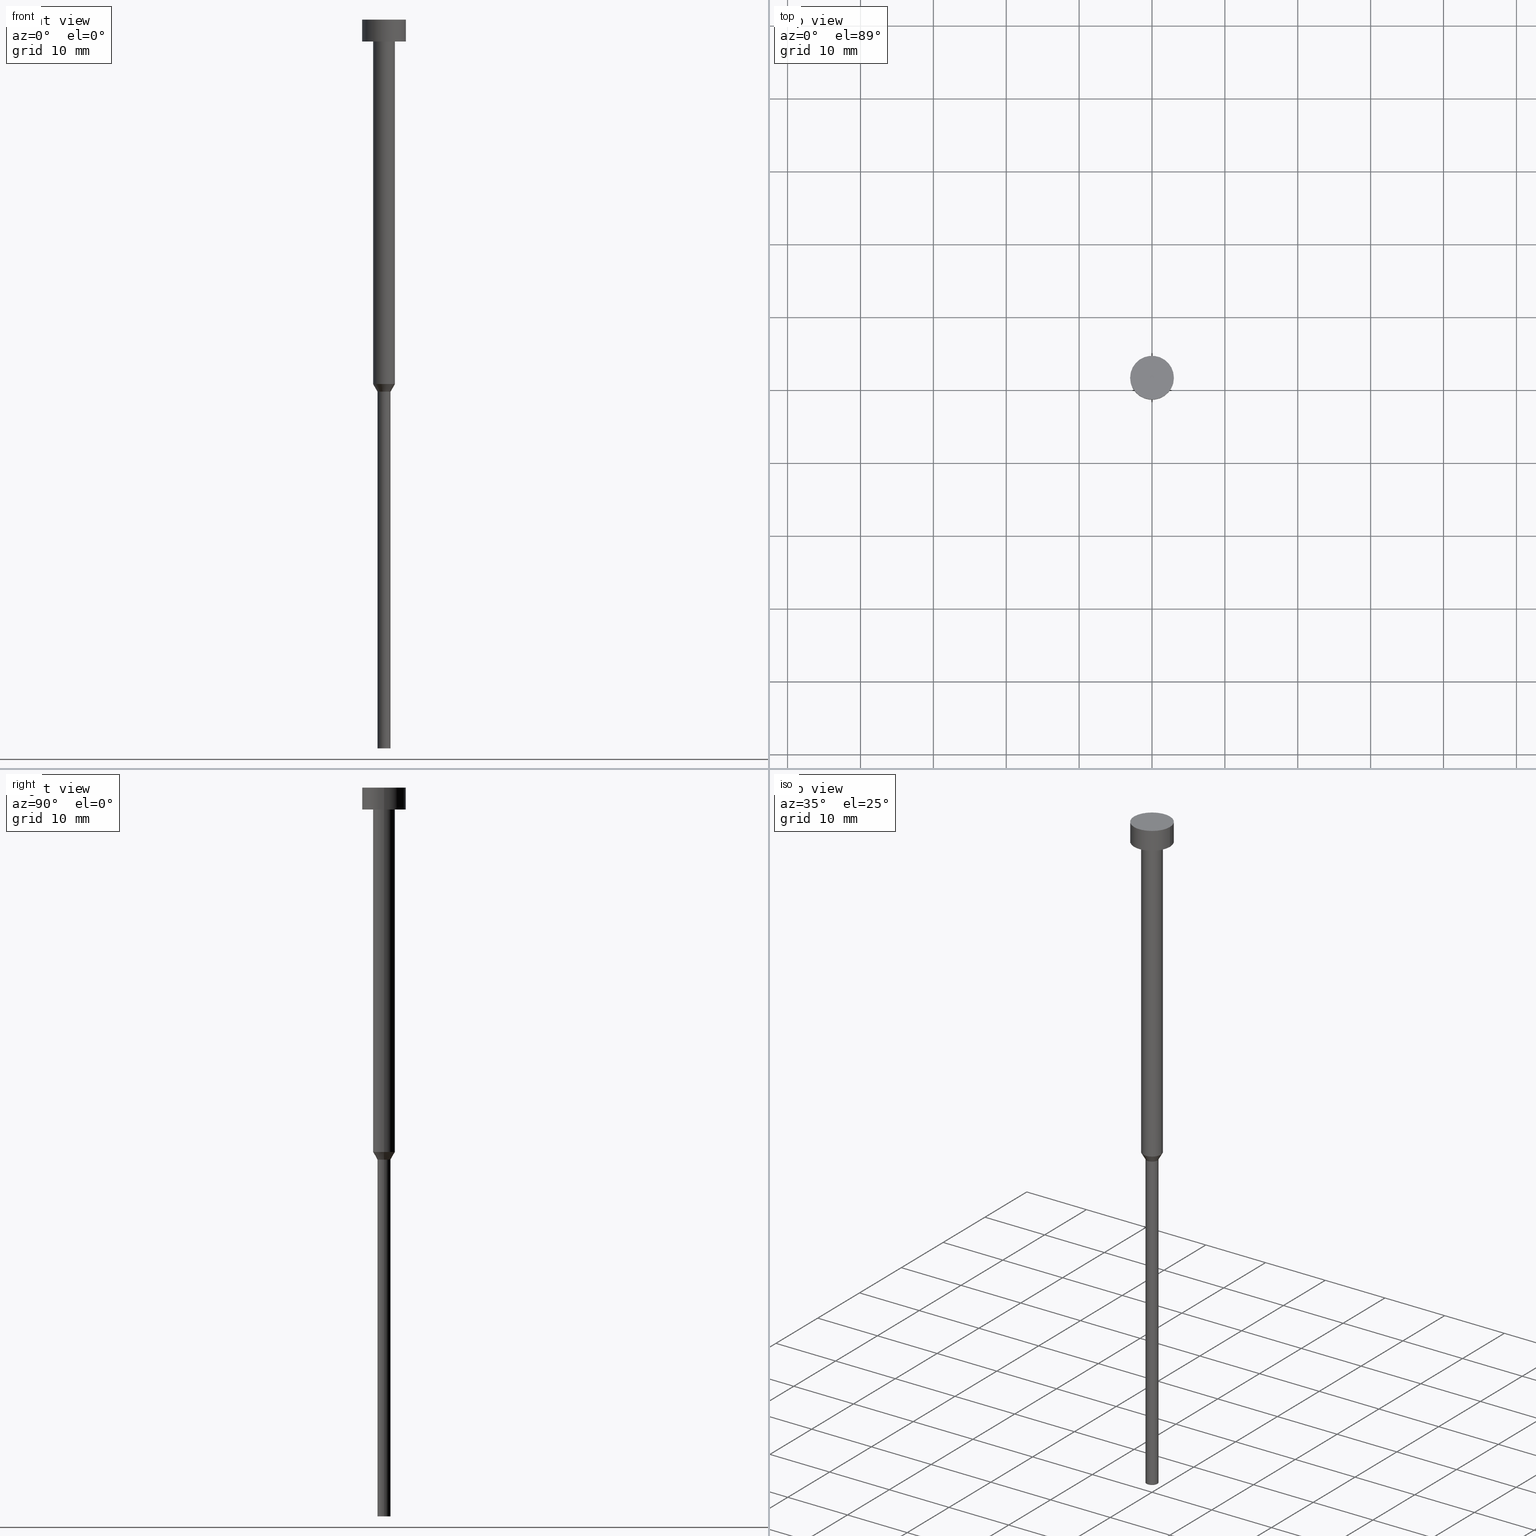
[diagram: canonical four-view strip — front | top / right | iso, engineering-drawing reading convention]
A machine part, canonical four-view strip (front | top / right | iso — engineering-drawing reading convention). The complete STEP part file that produces these views, byte-faithful:
ISO-10303-21;
HEADER;
FILE_DESCRIPTION (( 'STEP AP203' ),
    '1' );
FILE_NAME ('d9d7.STEP',
    '2023-02-13T10:56:32',
    ( '' ),
    ( '' ),
    'SwSTEP 2.0',
    'SolidWorks 2019',
    '' );
FILE_SCHEMA (( 'CONFIG_CONTROL_DESIGN' ));
ENDSEC;

DATA;
#1 = CARTESIAN_POINT ( 'NONE',  ( -0.9000000000000000222, 1.102182119232617788E-16, -51.03923048454132783 ) ) ;
#2 = CARTESIAN_POINT ( 'NONE',  ( 0.000000000000000000, 0.000000000000000000, -3.000000000000000888 ) ) ;
#3 = CARTESIAN_POINT ( 'NONE',  ( 1.500000000000000000, 0.000000000000000000, -50.00000000000000000 ) ) ;
#4 = AXIS2_PLACEMENT_3D ( 'NONE', #252, #111, #197 ) ;
#5 = CARTESIAN_POINT ( 'NONE',  ( 0.000000000000000000, 0.000000000000000000, 0.000000000000000000 ) ) ;
#6 = EDGE_CURVE ( 'NONE', #209, #97, #129, .T. ) ;
#7 = EDGE_CURVE ( 'NONE', #144, #146, #316, .T. ) ;
#8 = PRODUCT_DEFINITION ( 'NEZN�M�', '', #194, #217 ) ;
#9 = DIRECTION ( 'NONE',  ( -0.000000000000000000, -0.000000000000000000, 1.000000000000000000 ) ) ;
#10 = DIRECTION ( 'NONE',  ( -0.000000000000000000, -0.000000000000000000, 1.000000000000000000 ) ) ;
#11 = DIRECTION ( 'NONE',  ( -0.000000000000000000, -0.000000000000000000, 1.000000000000000000 ) ) ;
#12 = ORIENTED_EDGE ( 'NONE', *, *, #240, .F. ) ;
#13 = CARTESIAN_POINT ( 'NONE',  ( -0.9000000000000000222, 1.102182119232617788E-16, 0.000000000000000000 ) ) ;
#14 = AXIS2_PLACEMENT_3D ( 'NONE', #43, #322, #76 ) ;
#15 = DATE_AND_TIME ( #286, #250 ) ;
#16 = EDGE_LOOP ( 'NONE', ( #280, #231 ) ) ;
#17 = VECTOR ( 'NONE', #56, 1000.000000000000000 ) ;
#18 = EDGE_CURVE ( 'NONE', #185, #97, #284, .T. ) ;
#19 = DATE_AND_TIME ( #180, #75 ) ;
#20 = ORIENTED_EDGE ( 'NONE', *, *, #192, .F. ) ;
#21 = EDGE_LOOP ( 'NONE', ( #26, #159, #203, #288 ) ) ;
#22 = CALENDAR_DATE ( 2023, 13, 2 ) ;
#23 = ADVANCED_FACE ( 'NONE', ( #344 ), #210, .T. ) ;
#24 = VERTEX_POINT ( 'NONE', #187 ) ;
#25 = AXIS2_PLACEMENT_3D ( 'NONE', #2, #215, #328 ) ;
#26 = ORIENTED_EDGE ( 'NONE', *, *, #240, .T. ) ;
#27 = CARTESIAN_POINT ( 'NONE',  ( 0.000000000000000000, 0.000000000000000000, -3.000000000000000888 ) ) ;
#28 = CARTESIAN_POINT ( 'NONE',  ( -1.500000000000000000, 1.836970198721029934E-16, -50.00000000000000000 ) ) ;
#29 =( GEOMETRIC_REPRESENTATION_CONTEXT ( 3 ) GLOBAL_UNCERTAINTY_ASSIGNED_CONTEXT ( ( #153 ) ) GLOBAL_UNIT_ASSIGNED_CONTEXT ( ( #63, #279, #141 ) ) REPRESENTATION_CONTEXT ( 'NONE', 'WORKASPACE' ) );
#30 = DIRECTION ( 'NONE',  ( 1.000000000000000000, 0.000000000000000000, 0.000000000000000000 ) ) ;
#31 = MANIFOLD_SOLID_BREP ( 'Rotovat1', #59 ) ;
#32 = ADVANCED_FACE ( 'NONE', ( #93 ), #292, .T. ) ;
#33 = DIRECTION ( 'NONE',  ( -0.000000000000000000, -0.000000000000000000, 1.000000000000000000 ) ) ;
#34 = CARTESIAN_POINT ( 'NONE',  ( -3.000000000000000000, 3.673940397442059868E-16, 0.000000000000000000 ) ) ;
#35 = CARTESIAN_POINT ( 'NONE',  ( 3.000000000000000000, 0.000000000000000000, 0.000000000000000000 ) ) ;
#36 = CARTESIAN_POINT ( 'NONE',  ( 0.000000000000000000, 0.000000000000000000, -50.00000000000000000 ) ) ;
#37 = CC_DESIGN_APPROVAL ( #94, ( #194 ) ) ;
#38 = ORIENTED_EDGE ( 'NONE', *, *, #46, .F. ) ;
#39 = VERTEX_POINT ( 'NONE', #53 ) ;
#40 = PERSON_AND_ORGANIZATION ( #345, #108 ) ;
#41 = AXIS2_PLACEMENT_3D ( 'NONE', #193, #242, #30 ) ;
#42 = PERSON_AND_ORGANIZATION_ROLE ( 'creator' ) ;
#43 = CARTESIAN_POINT ( 'NONE',  ( 0.000000000000000000, 0.000000000000000000, 0.000000000000000000 ) ) ;
#44 = APPROVAL_DATE_TIME ( #15, #183 ) ;
#45 = ORIENTED_EDGE ( 'NONE', *, *, #254, .T. ) ;
#46 = EDGE_CURVE ( 'NONE', #314, #39, #50, .T. ) ;
#47 = DIRECTION ( 'NONE',  ( 0.000000000000000000, 0.000000000000000000, 1.000000000000000000 ) ) ;
#48 = ORIENTED_EDGE ( 'NONE', *, *, #6, .F. ) ;
#49 = ORIENTED_EDGE ( 'NONE', *, *, #340, .T. ) ;
#50 = CIRCLE ( 'NONE', #335, 3.000000000000000000 ) ;
#51 = CARTESIAN_POINT ( 'NONE',  ( 3.000000000000000000, 0.000000000000000000, -3.673940397442059868E-16 ) ) ;
#52 = PLANE ( 'NONE',  #258 ) ;
#53 = CARTESIAN_POINT ( 'NONE',  ( 3.000000000000000000, 0.000000000000000000, -3.000000000000000888 ) ) ;
#54 = DIRECTION ( 'NONE',  ( 1.000000000000000000, 0.000000000000000000, 0.000000000000000000 ) ) ;
#55 = DIRECTION ( 'NONE',  ( -0.000000000000000000, -0.000000000000000000, 1.000000000000000000 ) ) ;
#56 = DIRECTION ( 'NONE',  ( -0.000000000000000000, -0.000000000000000000, 1.000000000000000000 ) ) ;
#57 = AXIS2_PLACEMENT_3D ( 'NONE', #198, #195, #87 ) ;
#58 = LOCAL_TIME ( 11, 56, 32.00000000000000000, #319 ) ;
#59 = CLOSED_SHELL ( 'NONE', ( #277, #305, #122, #32, #130, #253, #291, #23, #226, #243, #79 ) ) ;
#60 = CYLINDRICAL_SURFACE ( 'NONE', #165, 1.500000000000000000 ) ;
#61 = EDGE_CURVE ( 'NONE', #182, #96, #241, .T. ) ;
#62 = CYLINDRICAL_SURFACE ( 'NONE', #309, 3.000000000000000000 ) ;
#63 =( LENGTH_UNIT ( ) NAMED_UNIT ( * ) SI_UNIT ( .MILLI., .METRE. ) );
#64 = EDGE_LOOP ( 'NONE', ( #12, #38 ) ) ;
#65 = CARTESIAN_POINT ( 'NONE',  ( 0.000000000000000000, 0.000000000000000000, -3.000000000000000888 ) ) ;
#66 = VERTEX_POINT ( 'NONE', #246 ) ;
#67 = PERSON_AND_ORGANIZATION_ROLE ( 'classification_officer' ) ;
#68 = ORIENTED_EDGE ( 'NONE', *, *, #300, .T. ) ;
#69 = SECURITY_CLASSIFICATION_LEVEL ( 'unclassified' ) ;
#70 = ORIENTED_EDGE ( 'NONE', *, *, #46, .T. ) ;
#71 = ORIENTED_EDGE ( 'NONE', *, *, #346, .F. ) ;
#72 = CC_DESIGN_PERSON_AND_ORGANIZATION_ASSIGNMENT ( #156, #176, ( #306 ) ) ;
#73 = PERSON_AND_ORGANIZATION ( #345, #108 ) ;
#74 = DIRECTION ( 'NONE',  ( -0.000000000000000000, -0.000000000000000000, 1.000000000000000000 ) ) ;
#75 = LOCAL_TIME ( 11, 56, 32.00000000000000000, #208 ) ;
#76 = DIRECTION ( 'NONE',  ( 1.000000000000000000, 0.000000000000000000, 0.000000000000000000 ) ) ;
#77 = AXIS2_PLACEMENT_3D ( 'NONE', #162, #81, #272 ) ;
#78 = PRODUCT_RELATED_PRODUCT_CATEGORY ( 'detail', '', ( #306 ) ) ;
#79 = ADVANCED_FACE ( 'NONE', ( #244 ), #52, .T. ) ;
#80 = CARTESIAN_POINT ( 'NONE',  ( 1.500000000000000000, 0.000000000000000000, -3.000000000000000888 ) ) ;
#81 = DIRECTION ( 'NONE',  ( 0.000000000000000000, 0.000000000000000000, -1.000000000000000000 ) ) ;
#82 = CARTESIAN_POINT ( 'NONE',  ( 0.000000000000000000, 0.000000000000000000, -51.03923048454132783 ) ) ;
#83 = FACE_OUTER_BOUND ( 'NONE', #64, .T. ) ;
#84 = DIRECTION ( 'NONE',  ( -0.000000000000000000, -0.000000000000000000, 1.000000000000000000 ) ) ;
#85 = DIRECTION ( 'NONE',  ( 1.000000000000000000, 0.000000000000000000, 0.000000000000000000 ) ) ;
#86 = AXIS2_PLACEMENT_3D ( 'NONE', #236, #74, #352 ) ;
#87 = DIRECTION ( 'NONE',  ( 1.000000000000000000, 0.000000000000000000, 0.000000000000000000 ) ) ;
#88 = DIRECTION ( 'NONE',  ( -0.000000000000000000, -0.000000000000000000, 1.000000000000000000 ) ) ;
#89 = DIRECTION ( 'NONE',  ( 1.000000000000000000, 0.000000000000000000, 0.000000000000000000 ) ) ;
#90 = CC_DESIGN_DATE_AND_TIME_ASSIGNMENT ( #145, #283, ( #8 ) ) ;
#91 = CARTESIAN_POINT ( 'NONE',  ( -3.000000000000000000, 3.673940397442059868E-16, -3.000000000000000888 ) ) ;
#92 = COORDINATED_UNIVERSAL_TIME_OFFSET ( 1, 0, .AHEAD. ) ;
#93 = FACE_OUTER_BOUND ( 'NONE', #281, .T. ) ;
#94 = APPROVAL ( #149, 'NEUR�EN�' ) ;
#95 = CALENDAR_DATE ( 2023, 13, 2 ) ;
#96 = VERTEX_POINT ( 'NONE', #80 ) ;
#97 = VERTEX_POINT ( 'NONE', #28 ) ;
#98 = APPROVAL_DATE_TIME ( #261, #94 ) ;
#99 = DIRECTION ( 'NONE',  ( -0.000000000000000000, -0.000000000000000000, 1.000000000000000000 ) ) ;
#100 = ORIENTED_EDGE ( 'NONE', *, *, #254, .F. ) ;
#101 = EDGE_CURVE ( 'NONE', #66, #256, #137, .T. ) ;
#102 = AXIS2_PLACEMENT_3D ( 'NONE', #127, #99, #320 ) ;
#103 = CARTESIAN_POINT ( 'NONE',  ( 0.000000000000000000, -3.000000000000000000, -3.000000000000000888 ) ) ;
#104 = CIRCLE ( 'NONE', #57, 3.000000000000000000 ) ;
#105 = DIRECTION ( 'NONE',  ( -0.000000000000000000, -0.000000000000000000, 1.000000000000000000 ) ) ;
#106 = CARTESIAN_POINT ( 'NONE',  ( 0.000000000000000000, 0.000000000000000000, -3.000000000000000888 ) ) ;
#107 = PLANE ( 'NONE',  #290 ) ;
#108 = ORGANIZATION ( 'NEUR�EN�', 'NEUR�EN�', '' ) ;
#109 = CARTESIAN_POINT ( 'NONE',  ( -3.000000000000000000, 3.673940397442059868E-16, -3.673940397442059868E-16 ) ) ;
#110 = DIRECTION ( 'NONE',  ( -0.000000000000000000, -0.000000000000000000, 1.000000000000000000 ) ) ;
#111 = DIRECTION ( 'NONE',  ( -0.000000000000000000, -0.000000000000000000, 1.000000000000000000 ) ) ;
#112 = LOCAL_TIME ( 11, 56, 32.00000000000000000, #123 ) ;
#113 = DIRECTION ( 'NONE',  ( 1.000000000000000000, 0.000000000000000000, 0.000000000000000000 ) ) ;
#114 = DIRECTION ( 'NONE',  ( 1.000000000000000000, 0.000000000000000000, 0.000000000000000000 ) ) ;
#115 = EDGE_LOOP ( 'NONE', ( #48, #318, #312, #349 ) ) ;
#116 = LINE ( 'NONE', #13, #212 ) ;
#117 = ORIENTED_EDGE ( 'NONE', *, *, #18, .T. ) ;
#118 = CC_DESIGN_APPROVAL ( #167, ( #8 ) ) ;
#119 = SECURITY_CLASSIFICATION ( '', '', #69 ) ;
#120 = CIRCLE ( 'NONE', #186, 0.9000000000000000222 ) ;
#121 = ORIENTED_EDGE ( 'NONE', *, *, #263, .F. ) ;
#122 = ADVANCED_FACE ( 'NONE', ( #190 ), #354, .T. ) ;
#123 = COORDINATED_UNIVERSAL_TIME_OFFSET ( 1, 0, .AHEAD. ) ;
#124 = ORIENTED_EDGE ( 'NONE', *, *, #18, .F. ) ;
#125 = ORIENTED_EDGE ( 'NONE', *, *, #192, .T. ) ;
#126 = DATE_TIME_ROLE ( 'classification_date' ) ;
#127 = CARTESIAN_POINT ( 'NONE',  ( 0.000000000000000000, 0.000000000000000000, -3.673940397442059868E-16 ) ) ;
#128 = APPROVAL_ROLE ( '' ) ;
#129 = LINE ( 'NONE', #155, #299 ) ;
#130 = ADVANCED_FACE ( 'NONE', ( #164 ), #327, .T. ) ;
#131 = CARTESIAN_POINT ( 'NONE',  ( 0.9000000000000000222, 0.000000000000000000, 0.000000000000000000 ) ) ;
#132 = AXIS2_PLACEMENT_3D ( 'NONE', #5, #55, #294 ) ;
#133 = DIRECTION ( 'NONE',  ( 1.000000000000000000, 0.000000000000000000, 0.000000000000000000 ) ) ;
#134 = AXIS2_PLACEMENT_3D ( 'NONE', #163, #330, #133 ) ;
#135 = CARTESIAN_POINT ( 'NONE',  ( 0.000000000000000000, 0.000000000000000000, -51.03923048454132783 ) ) ;
#136 = DIRECTION ( 'NONE',  ( 1.000000000000000000, 0.000000000000000000, 0.000000000000000000 ) ) ;
#137 = LINE ( 'NONE', #131, #325 ) ;
#138 = EDGE_CURVE ( 'NONE', #209, #256, #343, .T. ) ;
#139 = LINE ( 'NONE', #35, #17 ) ;
#140 = CC_DESIGN_PERSON_AND_ORGANIZATION_ASSIGNMENT ( #259, #232, ( #194 ) ) ;
#141 =( NAMED_UNIT ( * ) SI_UNIT ( $, .STERADIAN. ) SOLID_ANGLE_UNIT ( ) );
#142 = ORIENTED_EDGE ( 'NONE', *, *, #138, .F. ) ;
#143 = APPLICATION_PROTOCOL_DEFINITION ( 'international standard', 'config_control_design', 1994, #331 ) ;
#144 = VERTEX_POINT ( 'NONE', #51 ) ;
#145 = DATE_AND_TIME ( #317, #147 ) ;
#146 = VERTEX_POINT ( 'NONE', #109 ) ;
#147 = LOCAL_TIME ( 11, 56, 32.00000000000000000, #92 ) ;
#148 = AXIS2_PLACEMENT_3D ( 'NONE', #65, #88, #85 ) ;
#149 = APPROVAL_STATUS ( 'not_yet_approved' ) ;
#150 = ORIENTED_EDGE ( 'NONE', *, *, #219, .T. ) ;
#151 = SHAPE_DEFINITION_REPRESENTATION ( #171, #315 ) ;
#152 = ORIENTED_EDGE ( 'NONE', *, *, #184, .F. ) ;
#153 = UNCERTAINTY_MEASURE_WITH_UNIT (LENGTH_MEASURE( 1.000000000000000082E-05 ), #63, 'distance_accuracy_value', 'NONE');
#154 = APPLICATION_PROTOCOL_DEFINITION ( 'international standard', 'config_control_design', 1994, #304 ) ;
#155 = CARTESIAN_POINT ( 'NONE',  ( -1.500000000000000000, 1.836970198721029934E-16, -50.00000000000000000 ) ) ;
#156 = PERSON_AND_ORGANIZATION ( #345, #108 ) ;
#157 = EDGE_CURVE ( 'NONE', #256, #185, #271, .T. ) ;
#158 = VECTOR ( 'NONE', #84, 1000.000000000000000 ) ;
#159 = ORIENTED_EDGE ( 'NONE', *, *, #346, .T. ) ;
#160 = DIRECTION ( 'NONE',  ( 1.000000000000000000, 0.000000000000000000, 0.000000000000000000 ) ) ;
#161 = CARTESIAN_POINT ( 'NONE',  ( 0.000000000000000000, 0.000000000000000000, -50.00000000000000000 ) ) ;
#162 = CARTESIAN_POINT ( 'NONE',  ( 0.000000000000000000, 0.000000000000000000, -100.0000000000000000 ) ) ;
#163 = CARTESIAN_POINT ( 'NONE',  ( 0.000000000000000000, 0.000000000000000000, -50.00000000000000000 ) ) ;
#164 = FACE_OUTER_BOUND ( 'NONE', #172, .T. ) ;
#165 = AXIS2_PLACEMENT_3D ( 'NONE', #218, #10, #89 ) ;
#166 = CARTESIAN_POINT ( 'NONE',  ( 1.500000000000000000, 0.000000000000000000, 0.000000000000000000 ) ) ;
#167 = APPROVAL ( #206, 'NEUR�EN�' ) ;
#168 = AXIS2_PLACEMENT_3D ( 'NONE', #36, #248, #114 ) ;
#169 = ORIENTED_EDGE ( 'NONE', *, *, #157, .F. ) ;
#170 = FACE_OUTER_BOUND ( 'NONE', #115, .T. ) ;
#171 = PRODUCT_DEFINITION_SHAPE ( 'NONE', 'NONE',  #8 ) ;
#172 = EDGE_LOOP ( 'NONE', ( #20, #121 ) ) ;
#173 = AXIS2_PLACEMENT_3D ( 'NONE', #161, #293, #189 ) ;
#174 = ORIENTED_EDGE ( 'NONE', *, *, #6, .T. ) ;
#175 = APPROVAL_DATE_TIME ( #19, #167 ) ;
#176 = PERSON_AND_ORGANIZATION_ROLE ( 'design_owner' ) ;
#177 = ORIENTED_EDGE ( 'NONE', *, *, #263, .T. ) ;
#178 = CIRCLE ( 'NONE', #25, 3.000000000000000000 ) ;
#179 = APPROVAL_PERSON_ORGANIZATION ( #230, #167, #264 ) ;
#180 = CALENDAR_DATE ( 2023, 13, 2 ) ;
#181 = EDGE_LOOP ( 'NONE', ( #152, #287, #207, #289 ) ) ;
#182 = VERTEX_POINT ( 'NONE', #332 ) ;
#183 = APPROVAL ( #255, 'NEUR�EN�' ) ;
#184 = EDGE_CURVE ( 'NONE', #97, #182, #296, .T. ) ;
#185 = VERTEX_POINT ( 'NONE', #3 ) ;
#186 = AXIS2_PLACEMENT_3D ( 'NONE', #297, #9, #220 ) ;
#187 = CARTESIAN_POINT ( 'NONE',  ( -0.9000000000000000222, 1.102182119232617788E-16, -100.0000000000000000 ) ) ;
#188 = DIRECTION ( 'NONE',  ( 1.000000000000000000, 0.000000000000000000, 0.000000000000000000 ) ) ;
#189 = DIRECTION ( 'NONE',  ( 1.000000000000000000, 0.000000000000000000, 0.000000000000000000 ) ) ;
#190 = FACE_OUTER_BOUND ( 'NONE', #260, .T. ) ;
#191 = DIRECTION ( 'NONE',  ( -0.000000000000000000, -0.000000000000000000, 1.000000000000000000 ) ) ;
#192 = EDGE_CURVE ( 'NONE', #66, #24, #329, .T. ) ;
#193 = CARTESIAN_POINT ( 'NONE',  ( 0.000000000000000000, 0.000000000000000000, -100.0000000000000000 ) ) ;
#194 = PRODUCT_DEFINITION_FORMATION_WITH_SPECIFIED_SOURCE ( 'LIBOVOLN�', '', #306, .NOT_KNOWN. ) ;
#195 = DIRECTION ( 'NONE',  ( -0.000000000000000000, -0.000000000000000000, 1.000000000000000000 ) ) ;
#196 = CIRCLE ( 'NONE', #173, 1.500000000000000000 ) ;
#197 = DIRECTION ( 'NONE',  ( 1.000000000000000000, 0.000000000000000000, 0.000000000000000000 ) ) ;
#198 = CARTESIAN_POINT ( 'NONE',  ( 0.000000000000000000, 0.000000000000000000, -3.673940397442059868E-16 ) ) ;
#199 = CC_DESIGN_SECURITY_CLASSIFICATION ( #119, ( #194 ) ) ;
#200 = VECTOR ( 'NONE', #110, 1000.000000000000000 ) ;
#201 = DIRECTION ( 'NONE',  ( 1.000000000000000000, 0.000000000000000000, 0.000000000000000000 ) ) ;
#202 = APPROVAL_ROLE ( '' ) ;
#203 = ORIENTED_EDGE ( 'NONE', *, *, #7, .F. ) ;
#204 = COORDINATED_UNIVERSAL_TIME_OFFSET ( 1, 0, .AHEAD. ) ;
#205 = EDGE_LOOP ( 'NONE', ( #100, #177, #222, #142 ) ) ;
#206 = APPROVAL_STATUS ( 'not_yet_approved' ) ;
#207 = ORIENTED_EDGE ( 'NONE', *, *, #321, .T. ) ;
#208 = COORDINATED_UNIVERSAL_TIME_OFFSET ( 1, 0, .AHEAD. ) ;
#209 = VERTEX_POINT ( 'NONE', #1 ) ;
#210 = CYLINDRICAL_SURFACE ( 'NONE', #14, 1.500000000000000000 ) ;
#211 = VECTOR ( 'NONE', #251, 1000.000000000000000 ) ;
#212 = VECTOR ( 'NONE', #11, 1000.000000000000000 ) ;
#213 = DIRECTION ( 'NONE',  ( 0.000000000000000000, 0.000000000000000000, -1.000000000000000000 ) ) ;
#214 = DIRECTION ( 'NONE',  ( 1.000000000000000000, 0.000000000000000000, 0.000000000000000000 ) ) ;
#215 = DIRECTION ( 'NONE',  ( -0.000000000000000000, -0.000000000000000000, 1.000000000000000000 ) ) ;
#216 = DIRECTION ( 'NONE',  ( 0.5000000000000002220, 0.000000000000000000, 0.8660254037844384856 ) ) ;
#217 = DESIGN_CONTEXT ( 'detailed design', #304, 'design' ) ;
#218 = CARTESIAN_POINT ( 'NONE',  ( 0.000000000000000000, 0.000000000000000000, 0.000000000000000000 ) ) ;
#219 = EDGE_CURVE ( 'NONE', #256, #209, #298, .T. ) ;
#220 = DIRECTION ( 'NONE',  ( 1.000000000000000000, 0.000000000000000000, 0.000000000000000000 ) ) ;
#221 = FACE_OUTER_BOUND ( 'NONE', #229, .T. ) ;
#222 = ORIENTED_EDGE ( 'NONE', *, *, #101, .T. ) ;
#223 = DIRECTION ( 'NONE',  ( -0.000000000000000000, -0.000000000000000000, 1.000000000000000000 ) ) ;
#224 = AXIS2_PLACEMENT_3D ( 'NONE', #347, #47, #201 ) ;
#225 = ORIENTED_EDGE ( 'NONE', *, *, #101, .F. ) ;
#226 = ADVANCED_FACE ( 'NONE', ( #268, #83 ), #107, .T. ) ;
#227 = CONICAL_SURFACE ( 'NONE', #168, 1.500000000000000000, 0.5235987755982991487 ) ;
#228 = PERSON_AND_ORGANIZATION ( #345, #108 ) ;
#229 = EDGE_LOOP ( 'NONE', ( #71, #70, #68, #235 ) ) ;
#230 = PERSON_AND_ORGANIZATION ( #345, #108 ) ;
#231 = ORIENTED_EDGE ( 'NONE', *, *, #61, .T. ) ;
#232 = PERSON_AND_ORGANIZATION_ROLE ( 'design_supplier' ) ;
#233 = EDGE_CURVE ( 'NONE', #97, #185, #196, .T. ) ;
#234 = ORIENTED_EDGE ( 'NONE', *, *, #184, .T. ) ;
#235 = ORIENTED_EDGE ( 'NONE', *, *, #340, .F. ) ;
#236 = CARTESIAN_POINT ( 'NONE',  ( 0.000000000000000000, 0.000000000000000000, -50.00000000000000000 ) ) ;
#237 = DIRECTION ( 'NONE',  ( 0.000000000000000000, -0.000000000000000000, 1.000000000000000000 ) ) ;
#238 = CC_DESIGN_PERSON_AND_ORGANIZATION_ASSIGNMENT ( #266, #42, ( #8 ) ) ;
#239 = APPROVAL_PERSON_ORGANIZATION ( #228, #94, #128 ) ;
#240 = EDGE_CURVE ( 'NONE', #39, #314, #178, .T. ) ;
#241 = CIRCLE ( 'NONE', #355, 1.500000000000000000 ) ;
#242 = DIRECTION ( 'NONE',  ( -0.000000000000000000, -0.000000000000000000, 1.000000000000000000 ) ) ;
#243 = ADVANCED_FACE ( 'NONE', ( #221 ), #303, .T. ) ;
#244 = FACE_OUTER_BOUND ( 'NONE', #262, .T. ) ;
#245 = CC_DESIGN_DATE_AND_TIME_ASSIGNMENT ( #282, #126, ( #119 ) ) ;
#246 = CARTESIAN_POINT ( 'NONE',  ( 0.9000000000000000222, 0.000000000000000000, -100.0000000000000000 ) ) ;
#247 = DIRECTION ( 'NONE',  ( -0.000000000000000000, -0.000000000000000000, 1.000000000000000000 ) ) ;
#248 = DIRECTION ( 'NONE',  ( -0.000000000000000000, -0.000000000000000000, 1.000000000000000000 ) ) ;
#249 = CYLINDRICAL_SURFACE ( 'NONE', #4, 0.9000000000000000222 ) ;
#250 = LOCAL_TIME ( 11, 56, 32.00000000000000000, #204 ) ;
#251 = DIRECTION ( 'NONE',  ( -0.000000000000000000, -0.000000000000000000, 1.000000000000000000 ) ) ;
#252 = CARTESIAN_POINT ( 'NONE',  ( 0.000000000000000000, 0.000000000000000000, 0.000000000000000000 ) ) ;
#253 = ADVANCED_FACE ( 'NONE', ( #342 ), #249, .T. ) ;
#254 = EDGE_CURVE ( 'NONE', #24, #209, #116, .T. ) ;
#255 = APPROVAL_STATUS ( 'not_yet_approved' ) ;
#256 = VERTEX_POINT ( 'NONE', #341 ) ;
#257 = CC_DESIGN_APPROVAL ( #183, ( #119 ) ) ;
#258 = AXIS2_PLACEMENT_3D ( 'NONE', #269, #237, #214 ) ;
#259 = PERSON_AND_ORGANIZATION ( #345, #108 ) ;
#260 = EDGE_LOOP ( 'NONE', ( #150, #174, #124, #169 ) ) ;
#261 = DATE_AND_TIME ( #95, #58 ) ;
#262 = EDGE_LOOP ( 'NONE', ( #308, #49 ) ) ;
#263 = EDGE_CURVE ( 'NONE', #24, #66, #120, .T. ) ;
#264 = APPROVAL_ROLE ( '' ) ;
#265 = DIRECTION ( 'NONE',  ( -0.5000000000000002220, 6.123233995736768501E-17, 0.8660254037844384856 ) ) ;
#266 = PERSON_AND_ORGANIZATION ( #345, #108 ) ;
#267 = ORIENTED_EDGE ( 'NONE', *, *, #321, .F. ) ;
#268 = FACE_BOUND ( 'NONE', #16, .T. ) ;
#269 = CARTESIAN_POINT ( 'NONE',  ( 0.000000000000000000, 0.000000000000000000, -1.836970198721029934E-16 ) ) ;
#270 = CARTESIAN_POINT ( 'NONE',  ( -1.500000000000000000, 1.836970198721029934E-16, 0.000000000000000000 ) ) ;
#271 = LINE ( 'NONE', #295, #337 ) ;
#272 = DIRECTION ( 'NONE',  ( -1.000000000000000000, 0.000000000000000000, -0.000000000000000000 ) ) ;
#273 = AXIS2_PLACEMENT_3D ( 'NONE', #82, #247, #188 ) ;
#274 = LINE ( 'NONE', #34, #200 ) ;
#275 = AXIS2_PLACEMENT_3D ( 'NONE', #135, #353, #160 ) ;
#276 = DIRECTION ( 'NONE',  ( -0.000000000000000000, -0.000000000000000000, 1.000000000000000000 ) ) ;
#277 = ADVANCED_FACE ( 'NONE', ( #278 ), #62, .T. ) ;
#278 = FACE_OUTER_BOUND ( 'NONE', #21, .T. ) ;
#279 =( NAMED_UNIT ( * ) PLANE_ANGLE_UNIT ( ) SI_UNIT ( $, .RADIAN. ) );
#280 = ORIENTED_EDGE ( 'NONE', *, *, #351, .T. ) ;
#281 = EDGE_LOOP ( 'NONE', ( #125, #45, #350, #225 ) ) ;
#282 = DATE_AND_TIME ( #22, #112 ) ;
#283 = DATE_TIME_ROLE ( 'creation_date' ) ;
#284 = CIRCLE ( 'NONE', #86, 1.500000000000000000 ) ;
#285 = ORIENTED_EDGE ( 'NONE', *, *, #351, .F. ) ;
#286 = CALENDAR_DATE ( 2023, 13, 2 ) ;
#287 = ORIENTED_EDGE ( 'NONE', *, *, #233, .T. ) ;
#288 = ORIENTED_EDGE ( 'NONE', *, *, #300, .F. ) ;
#289 = ORIENTED_EDGE ( 'NONE', *, *, #61, .F. ) ;
#290 = AXIS2_PLACEMENT_3D ( 'NONE', #103, #213, #326 ) ;
#291 = ADVANCED_FACE ( 'NONE', ( #170 ), #227, .T. ) ;
#292 = CYLINDRICAL_SURFACE ( 'NONE', #132, 0.9000000000000000222 ) ;
#293 = DIRECTION ( 'NONE',  ( -0.000000000000000000, -0.000000000000000000, 1.000000000000000000 ) ) ;
#294 = DIRECTION ( 'NONE',  ( 1.000000000000000000, 0.000000000000000000, 0.000000000000000000 ) ) ;
#295 = CARTESIAN_POINT ( 'NONE',  ( 1.500000000000000000, 0.000000000000000000, -50.00000000000000000 ) ) ;
#296 = LINE ( 'NONE', #270, #158 ) ;
#297 = CARTESIAN_POINT ( 'NONE',  ( 0.000000000000000000, 0.000000000000000000, -100.0000000000000000 ) ) ;
#298 = CIRCLE ( 'NONE', #275, 0.9000000000000000222 ) ;
#299 = VECTOR ( 'NONE', #265, 1000.000000000000227 ) ;
#300 = EDGE_CURVE ( 'NONE', #39, #144, #139, .T. ) ;
#301 = LINE ( 'NONE', #166, #211 ) ;
#302 = CIRCLE ( 'NONE', #148, 1.500000000000000000 ) ;
#303 = CYLINDRICAL_SURFACE ( 'NONE', #323, 3.000000000000000000 ) ;
#304 = APPLICATION_CONTEXT ( 'configuration controlled 3d designs of mechanical parts and assemblies' ) ;
#305 = ADVANCED_FACE ( 'NONE', ( #336 ), #60, .T. ) ;
#306 = PRODUCT ( 'd9d7', 'd9d7', '', ( #310 ) ) ;
#307 = CARTESIAN_POINT ( 'NONE',  ( 0.000000000000000000, 0.000000000000000000, 0.000000000000000000 ) ) ;
#308 = ORIENTED_EDGE ( 'NONE', *, *, #7, .T. ) ;
#309 = AXIS2_PLACEMENT_3D ( 'NONE', #334, #223, #113 ) ;
#310 = MECHANICAL_CONTEXT ( 'NONE', #331, 'mechanical' ) ;
#311 = PERSON_AND_ORGANIZATION ( #345, #108 ) ;
#312 = ORIENTED_EDGE ( 'NONE', *, *, #157, .T. ) ;
#313 = PERSON_AND_ORGANIZATION_ROLE ( 'creator' ) ;
#314 = VERTEX_POINT ( 'NONE', #91 ) ;
#315 = ADVANCED_BREP_SHAPE_REPRESENTATION ( 'd9d7', ( #31, #224 ), #29 ) ;
#316 = CIRCLE ( 'NONE', #102, 3.000000000000000000 ) ;
#317 = CALENDAR_DATE ( 2023, 13, 2 ) ;
#318 = ORIENTED_EDGE ( 'NONE', *, *, #138, .T. ) ;
#319 = COORDINATED_UNIVERSAL_TIME_OFFSET ( 1, 0, .AHEAD. ) ;
#320 = DIRECTION ( 'NONE',  ( 1.000000000000000000, 0.000000000000000000, 0.000000000000000000 ) ) ;
#321 = EDGE_CURVE ( 'NONE', #185, #96, #301, .T. ) ;
#322 = DIRECTION ( 'NONE',  ( -0.000000000000000000, -0.000000000000000000, 1.000000000000000000 ) ) ;
#323 = AXIS2_PLACEMENT_3D ( 'NONE', #307, #276, #338 ) ;
#324 = APPROVAL_PERSON_ORGANIZATION ( #40, #183, #202 ) ;
#325 = VECTOR ( 'NONE', #191, 1000.000000000000000 ) ;
#326 = DIRECTION ( 'NONE',  ( -1.000000000000000000, 0.000000000000000000, -0.000000000000000000 ) ) ;
#327 = PLANE ( 'NONE',  #77 ) ;
#328 = DIRECTION ( 'NONE',  ( 1.000000000000000000, 0.000000000000000000, 0.000000000000000000 ) ) ;
#329 = CIRCLE ( 'NONE', #41, 0.9000000000000000222 ) ;
#330 = DIRECTION ( 'NONE',  ( -0.000000000000000000, -0.000000000000000000, 1.000000000000000000 ) ) ;
#331 = APPLICATION_CONTEXT ( 'configuration controlled 3d designs of mechanical parts and assemblies' ) ;
#332 = CARTESIAN_POINT ( 'NONE',  ( -1.500000000000000000, 1.836970198721029934E-16, -3.000000000000000888 ) ) ;
#333 = CC_DESIGN_PERSON_AND_ORGANIZATION_ASSIGNMENT ( #311, #67, ( #119 ) ) ;
#334 = CARTESIAN_POINT ( 'NONE',  ( 0.000000000000000000, 0.000000000000000000, 0.000000000000000000 ) ) ;
#335 = AXIS2_PLACEMENT_3D ( 'NONE', #27, #105, #136 ) ;
#336 = FACE_OUTER_BOUND ( 'NONE', #348, .T. ) ;
#337 = VECTOR ( 'NONE', #216, 1000.000000000000227 ) ;
#338 = DIRECTION ( 'NONE',  ( 1.000000000000000000, 0.000000000000000000, 0.000000000000000000 ) ) ;
#339 = CC_DESIGN_PERSON_AND_ORGANIZATION_ASSIGNMENT ( #73, #313, ( #194 ) ) ;
#340 = EDGE_CURVE ( 'NONE', #146, #144, #104, .T. ) ;
#341 = CARTESIAN_POINT ( 'NONE',  ( 0.9000000000000000222, 0.000000000000000000, -51.03923048454132783 ) ) ;
#342 = FACE_OUTER_BOUND ( 'NONE', #205, .T. ) ;
#343 = CIRCLE ( 'NONE', #273, 0.9000000000000000222 ) ;
#344 = FACE_OUTER_BOUND ( 'NONE', #181, .T. ) ;
#345 = PERSON ( 'NEUR�EN�', 'NEUR�EN�', 'NEUR�EN�', ('NEUR�EN�'), ('NEUR�EN�'), ('NEUR�EN�') ) ;
#346 = EDGE_CURVE ( 'NONE', #314, #146, #274, .T. ) ;
#347 = CARTESIAN_POINT ( 'NONE',  ( 0.000000000000000000, 0.000000000000000000, 0.000000000000000000 ) ) ;
#348 = EDGE_LOOP ( 'NONE', ( #117, #234, #285, #267 ) ) ;
#349 = ORIENTED_EDGE ( 'NONE', *, *, #233, .F. ) ;
#350 = ORIENTED_EDGE ( 'NONE', *, *, #219, .F. ) ;
#351 = EDGE_CURVE ( 'NONE', #96, #182, #302, .T. ) ;
#352 = DIRECTION ( 'NONE',  ( 1.000000000000000000, 0.000000000000000000, 0.000000000000000000 ) ) ;
#353 = DIRECTION ( 'NONE',  ( -0.000000000000000000, -0.000000000000000000, 1.000000000000000000 ) ) ;
#354 = CONICAL_SURFACE ( 'NONE', #134, 1.500000000000000000, 0.5235987755982991487 ) ;
#355 = AXIS2_PLACEMENT_3D ( 'NONE', #106, #33, #54 ) ;
ENDSEC;
END-ISO-10303-21;
